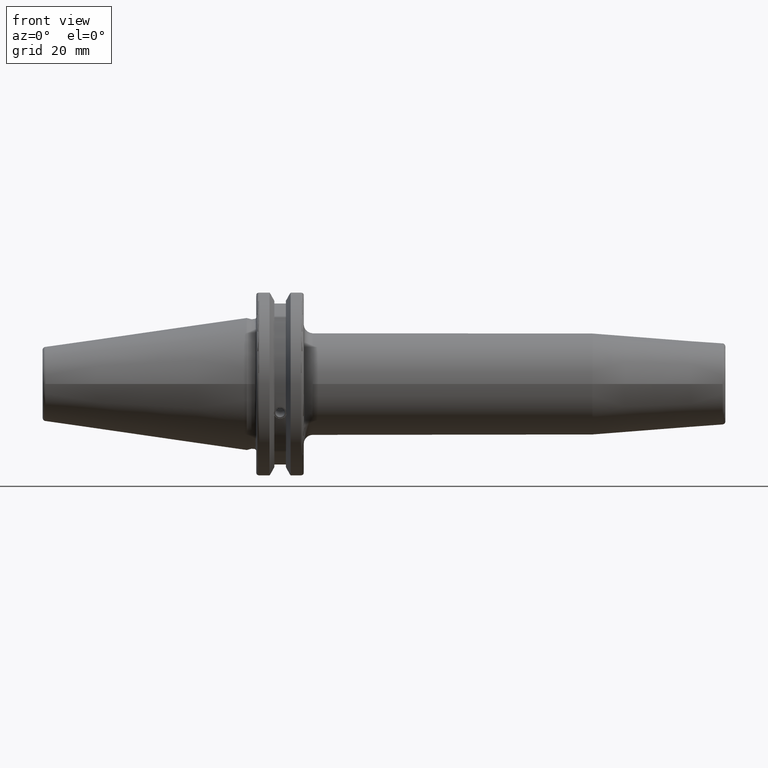
[diagram: clean part render]
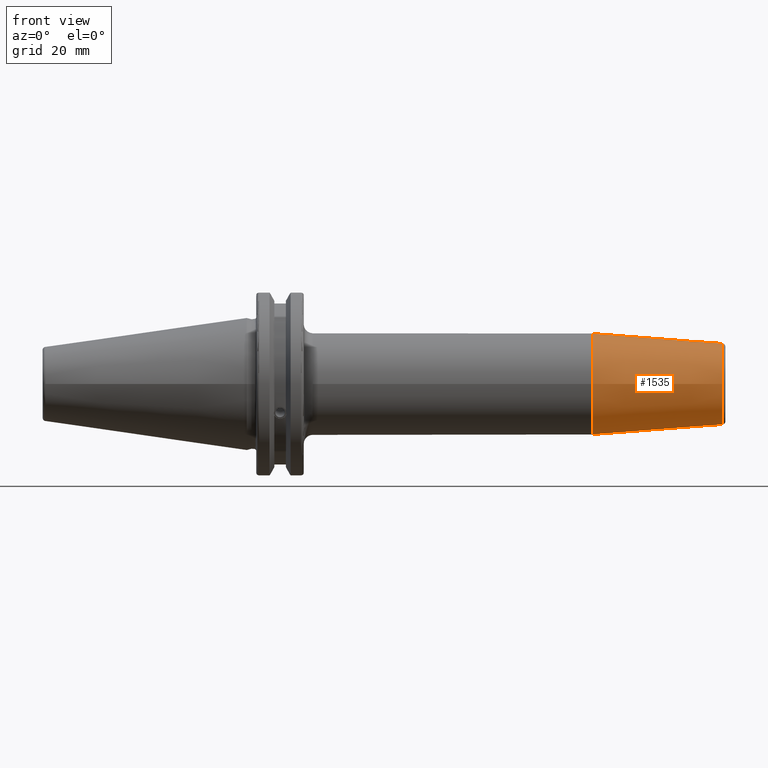
[diagram: same view with one face highlighted and labeled with its STEP entity id]
A machine part, front view. The second image highlights one B-rep face of the part: STEP entity #1535.
In plain terms, the highlighted conical surface has half-angle 4.5 deg.
Its self-contained STEP definition (entity closure, byte-faithful):
#183=FACE_OUTER_BOUND('',#276,.T.);
#276=EDGE_LOOP('',(#1070,#1071,#1072,#1073,#1074));
#378=LINE('',#2338,#474);
#474=VECTOR('',#1877,15.25);
#574=CIRCLE('',#1659,13.5725268420749);
#575=CIRCLE('',#1660,13.5725268420749);
#576=CIRCLE('',#1662,17.);
#652=VERTEX_POINT('',#2331);
#653=VERTEX_POINT('',#2333);
#654=VERTEX_POINT('',#2337);
#815=EDGE_CURVE('',#652,#653,#574,.T.);
#816=EDGE_CURVE('',#653,#652,#575,.T.);
#817=EDGE_CURVE('',#653,#654,#378,.T.);
#818=EDGE_CURVE('',#654,#654,#576,.T.);
#1070=ORIENTED_EDGE('',*,*,#816,.F.);
#1071=ORIENTED_EDGE('',*,*,#817,.T.);
#1072=ORIENTED_EDGE('',*,*,#818,.T.);
#1073=ORIENTED_EDGE('',*,*,#817,.F.);
#1074=ORIENTED_EDGE('',*,*,#815,.F.);
#1515=CONICAL_SURFACE('',#1661,15.25,0.0785398163397453);
#1535=ADVANCED_FACE('',(#183),#1515,.T.);
#1659=AXIS2_PLACEMENT_3D('',#2334,#1871,#1872);
#1660=AXIS2_PLACEMENT_3D('',#2335,#1873,#1874);
#1661=AXIS2_PLACEMENT_3D('',#2336,#1875,#1876);
#1662=AXIS2_PLACEMENT_3D('',#2339,#1878,#1879);
#1871=DIRECTION('center_axis',(1.,0.,0.));
#1872=DIRECTION('ref_axis',(0.,-1.,3.06161699786838E-17));
#1873=DIRECTION('center_axis',(1.,0.,0.));
#1874=DIRECTION('ref_axis',(0.,-1.,3.06161699786838E-17));
#1875=DIRECTION('center_axis',(-1.,0.,0.));
#1876=DIRECTION('ref_axis',(0.,1.,0.));
#1877=DIRECTION('',(-0.996917333733128,-0.0784590957278455,-9.60846804471017E-18));
#1878=DIRECTION('center_axis',(1.,0.,0.));
#1879=DIRECTION('ref_axis',(0.,0.,-1.));
#2331=CARTESIAN_POINT('',(159.078459095728,-1.66215515534886E-15,13.5725268420749));
#2333=CARTESIAN_POINT('',(159.078459095728,-13.5725268420749,-1.66215515534886E-15));
#2334=CARTESIAN_POINT('Origin',(159.078459095728,0.,-2.07769394418607E-15));
#2335=CARTESIAN_POINT('Origin',(159.078459095728,0.,-2.07769394418607E-15));
#2336=CARTESIAN_POINT('Origin',(137.764141711694,0.,0.));
#2337=CARTESIAN_POINT('',(115.528283423389,-17.,-2.0818995585505E-15));
#2338=CARTESIAN_POINT('',(137.764141711694,-15.25,-1.86758636869971E-15));
#2339=CARTESIAN_POINT('Origin',(115.528283423389,0.,0.));